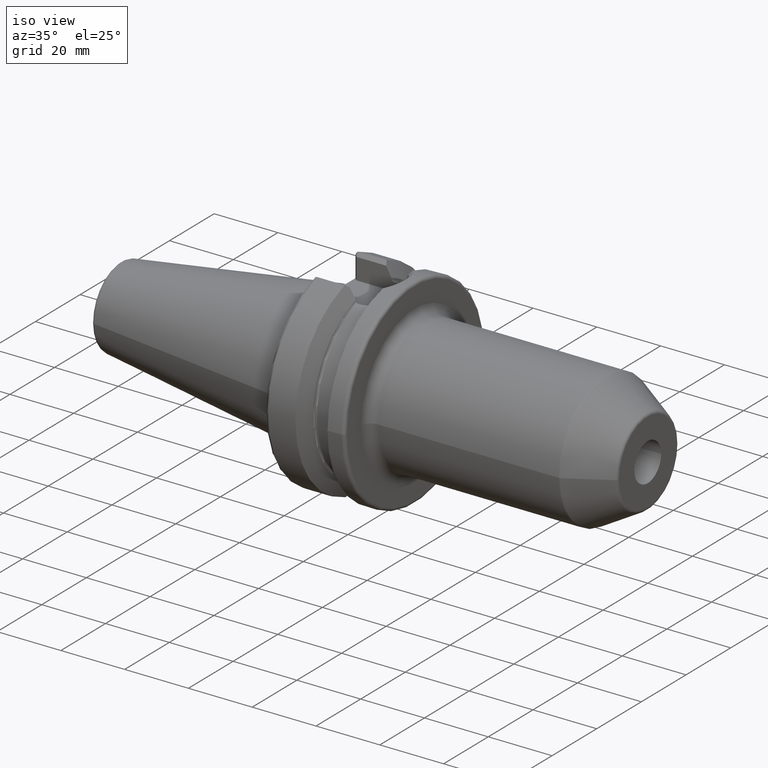
[diagram: clean part render]
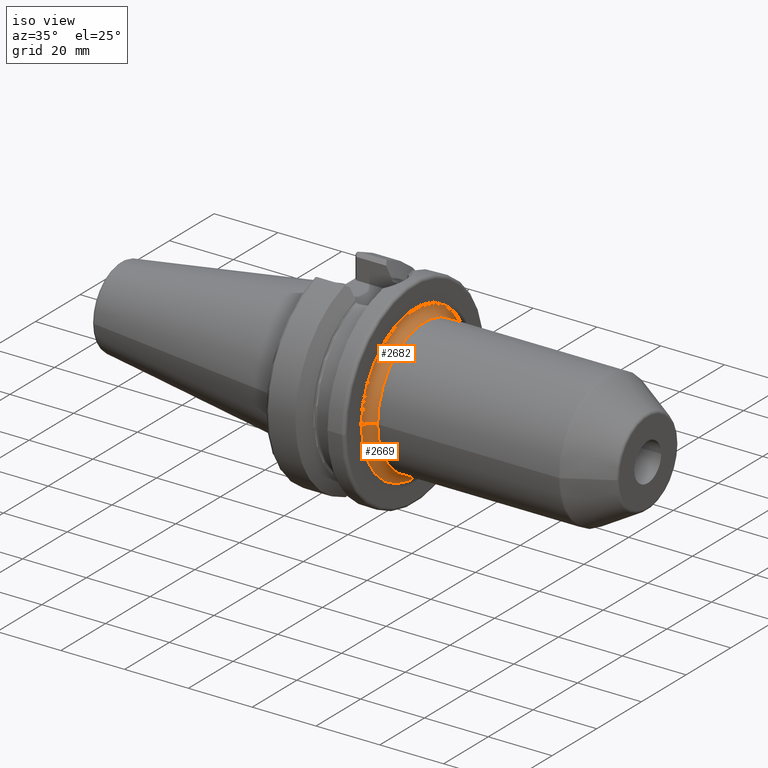
[diagram: same view with one multi-face feature highlighted, each face labeled with its STEP entity id]
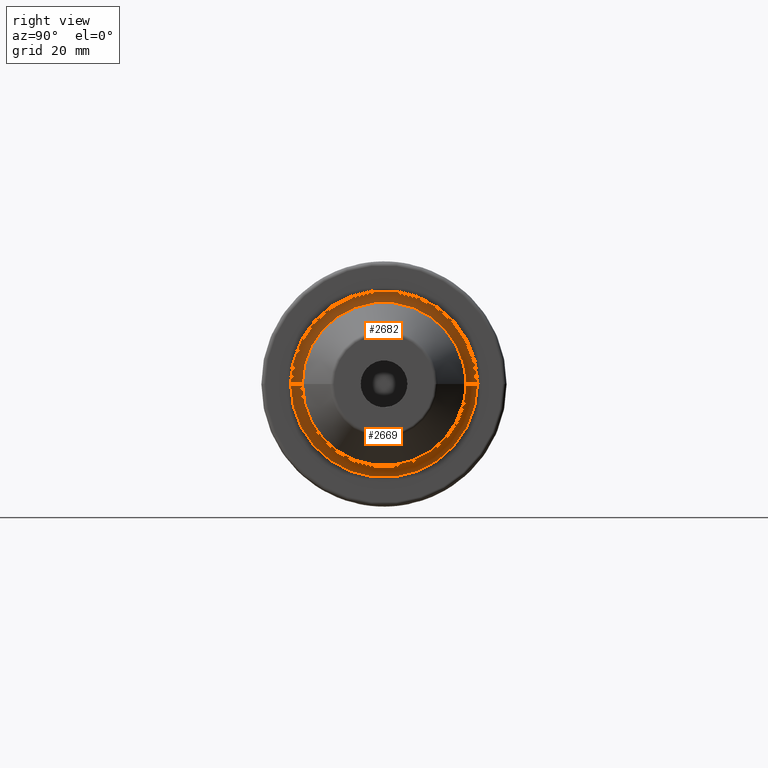
[diagram: same view with one multi-face feature highlighted, each face labeled with its STEP entity id]
A machine part, iso view. The highlighted faces form ONE feature: a constant-radius fillet chain: 2 tangent blend faces with common blend radius 3 mm. The faces share edges in the B-rep.
A second angle (right view) of the same feature is appended — it is thin or edge-on in the first view.
Their STEP definitions:
[1] entity #2669 (Torus):
#836=CARTESIAN_POINT('',(2.7E1,0.E0,0.E0));
#837=DIRECTION('',(1.E0,0.E0,0.E0));
#838=DIRECTION('',(0.E0,-1.E0,0.E0));
#839=AXIS2_PLACEMENT_3D('',#836,#837,#838);
#846=CARTESIAN_POINT('',(3.E1,-2.4E1,2.774447338538E-13));
#847=DIRECTION('',(0.E0,-1.155932988217E-14,-1.E0));
#848=DIRECTION('',(-1.E0,2.250051996574E-14,0.E0));
#849=AXIS2_PLACEMENT_3D('',#846,#847,#848);
#851=CARTESIAN_POINT('',(3.E1,2.4E1,-2.808864252302E-13));
#852=DIRECTION('',(0.E0,1.170244456894E-14,1.E0));
#853=DIRECTION('',(-1.E0,-2.250051996574E-14,0.E0));
#854=AXIS2_PLACEMENT_3D('',#851,#852,#853);
#931=CARTESIAN_POINT('',(3.E1,0.E0,0.E0));
#932=DIRECTION('',(1.E0,0.E0,0.E0));
#933=DIRECTION('',(0.E0,-1.E0,0.E0));
#934=AXIS2_PLACEMENT_3D('',#931,#932,#933);
#1531=CARTESIAN_POINT('',(2.7E1,-2.4E1,0.E0));
#1532=CARTESIAN_POINT('',(2.7E1,2.4E1,0.E0));
#1533=VERTEX_POINT('',#1531);
#1534=VERTEX_POINT('',#1532);
#1535=CARTESIAN_POINT('',(3.E1,-2.1E1,0.E0));
#1536=CARTESIAN_POINT('',(3.E1,2.1E1,0.E0));
#1537=VERTEX_POINT('',#1535);
#1538=VERTEX_POINT('',#1536);
#2655=CARTESIAN_POINT('',(3.E1,0.E0,0.E0));
#2656=DIRECTION('',(1.E0,0.E0,0.E0));
#2657=DIRECTION('',(0.E0,-9.999731921857E-1,7.322220282676E-3));
#2658=AXIS2_PLACEMENT_3D('',#2655,#2656,#2657);
#2659=TOROIDAL_SURFACE('',#2658,2.4E1,3.E0);
#2660=ORIENTED_EDGE('',*,*,#2648,.F.);
#2662=ORIENTED_EDGE('',*,*,#2661,.T.);
#2664=ORIENTED_EDGE('',*,*,#2663,.T.);
#2666=ORIENTED_EDGE('',*,*,#2665,.F.);
#2667=EDGE_LOOP('',(#2660,#2662,#2664,#2666));
#2668=FACE_OUTER_BOUND('',#2667,.F.);
#2669=ADVANCED_FACE('',(#2668),#2659,.F.);
#840=CIRCLE('',#839,2.4E1);
#850=CIRCLE('',#849,3.E0);
#855=CIRCLE('',#854,3.E0);
#935=CIRCLE('',#934,2.1E1);
#2648=EDGE_CURVE('',#1533,#1534,#840,.T.);
#2661=EDGE_CURVE('',#1533,#1537,#850,.T.);
#2663=EDGE_CURVE('',#1537,#1538,#935,.T.);
#2665=EDGE_CURVE('',#1534,#1538,#855,.T.);
[2] entity #2682 (Torus):
#841=CARTESIAN_POINT('',(2.7E1,0.E0,0.E0));
#842=DIRECTION('',(1.E0,0.E0,0.E0));
#843=DIRECTION('',(0.E0,1.E0,0.E0));
#844=AXIS2_PLACEMENT_3D('',#841,#842,#843);
#846=CARTESIAN_POINT('',(3.E1,-2.4E1,2.774447338538E-13));
#847=DIRECTION('',(0.E0,-1.155932988217E-14,-1.E0));
#848=DIRECTION('',(-1.E0,2.250051996574E-14,0.E0));
#849=AXIS2_PLACEMENT_3D('',#846,#847,#848);
#851=CARTESIAN_POINT('',(3.E1,2.4E1,-2.808864252302E-13));
#852=DIRECTION('',(0.E0,1.170244456894E-14,1.E0));
#853=DIRECTION('',(-1.E0,-2.250051996574E-14,0.E0));
#854=AXIS2_PLACEMENT_3D('',#851,#852,#853);
#861=CARTESIAN_POINT('',(3.E1,0.E0,0.E0));
#862=DIRECTION('',(1.E0,0.E0,0.E0));
#863=DIRECTION('',(0.E0,1.E0,0.E0));
#864=AXIS2_PLACEMENT_3D('',#861,#862,#863);
#1531=CARTESIAN_POINT('',(2.7E1,-2.4E1,0.E0));
#1532=CARTESIAN_POINT('',(2.7E1,2.4E1,0.E0));
#1533=VERTEX_POINT('',#1531);
#1534=VERTEX_POINT('',#1532);
#1535=CARTESIAN_POINT('',(3.E1,-2.1E1,0.E0));
#1536=CARTESIAN_POINT('',(3.E1,2.1E1,0.E0));
#1537=VERTEX_POINT('',#1535);
#1538=VERTEX_POINT('',#1536);
#2670=CARTESIAN_POINT('',(3.E1,0.E0,0.E0));
#2671=DIRECTION('',(1.E0,0.E0,0.E0));
#2672=DIRECTION('',(0.E0,9.999731921857E-1,-7.322220282677E-3));
#2673=AXIS2_PLACEMENT_3D('',#2670,#2671,#2672);
#2674=TOROIDAL_SURFACE('',#2673,2.4E1,3.E0);
#2676=ORIENTED_EDGE('',*,*,#2675,.T.);
#2677=ORIENTED_EDGE('',*,*,#2661,.F.);
#2678=ORIENTED_EDGE('',*,*,#2650,.F.);
#2679=ORIENTED_EDGE('',*,*,#2665,.T.);
#2680=EDGE_LOOP('',(#2676,#2677,#2678,#2679));
#2681=FACE_OUTER_BOUND('',#2680,.F.);
#2682=ADVANCED_FACE('',(#2681),#2674,.F.);
#845=CIRCLE('',#844,2.4E1);
#850=CIRCLE('',#849,3.E0);
#855=CIRCLE('',#854,3.E0);
#865=CIRCLE('',#864,2.1E1);
#2650=EDGE_CURVE('',#1534,#1533,#845,.T.);
#2661=EDGE_CURVE('',#1533,#1537,#850,.T.);
#2665=EDGE_CURVE('',#1534,#1538,#855,.T.);
#2675=EDGE_CURVE('',#1538,#1537,#865,.T.);